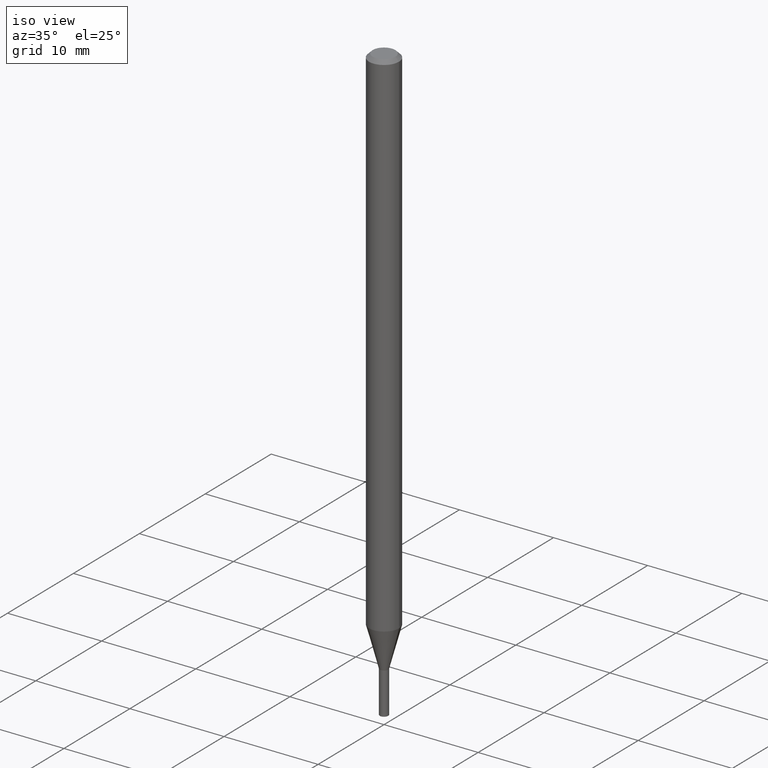
[diagram: clean part render]
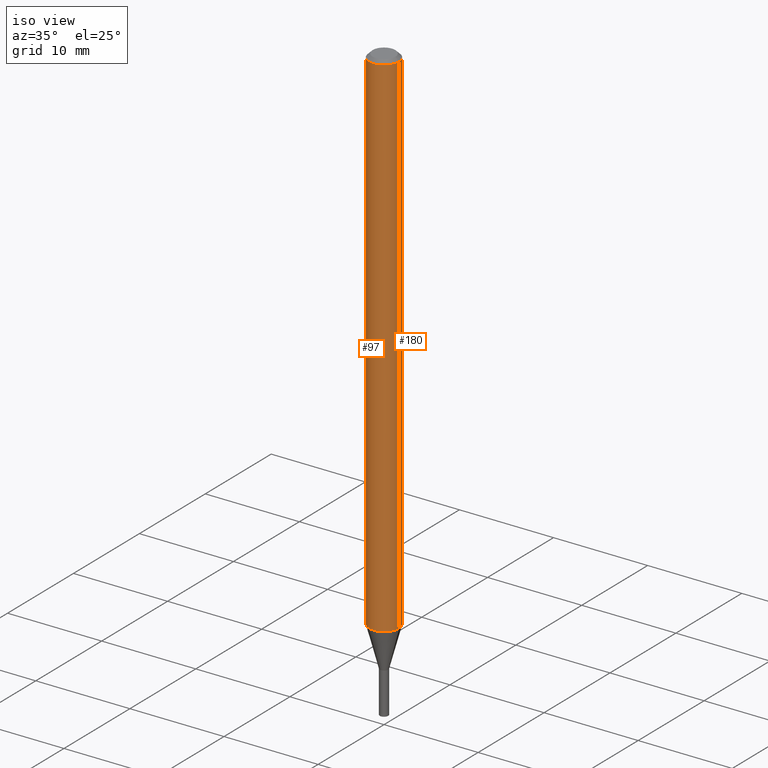
[diagram: same view with one multi-face feature highlighted, each face labeled with its STEP entity id]
A machine part, iso view. The highlighted faces form ONE feature: a constant-radius fillet chain: 2 tangent blend faces with common blend radius 1.5875 mm. The faces share edges in the B-rep.
Their STEP definitions:
[1] entity #97 (Cylinder):
#2 = CARTESIAN_POINT ( 'NONE',  ( 0.06250000000000000000, -4.364351673553916694E-16, 3.047610484872459871E-30 ) ) ;
#5 = DIRECTION ( 'NONE',  ( 1.000000000000000000, -6.982962677686262766E-15, 0.000000000000000000 ) ) ;
#9 = AXIS2_PLACEMENT_3D ( 'NONE', #406, #78, #179 ) ;
#29 = VERTEX_POINT ( 'NONE', #169 ) ;
#40 = AXIS2_PLACEMENT_3D ( 'NONE', #423, #247, #218 ) ;
#41 = CARTESIAN_POINT ( 'NONE',  ( 5.275017351895093327E-29, -7.531326754049456374E-15, -2.157057713659400022 ) ) ;
#42 = AXIS2_PLACEMENT_3D ( 'NONE', #41, #111, #5 ) ;
#78 = DIRECTION ( 'NONE',  ( -2.445468806185136597E-29, 3.491481338843145583E-15, 1.000000000000000000 ) ) ;
#97 = ADVANCED_FACE ( 'NONE', ( #348 ), #103, .T. ) ;
#103 = CYLINDRICAL_SURFACE ( 'NONE', #40, 0.06250000000000000000 ) ;
#111 = DIRECTION ( 'NONE',  ( -2.445468806185136597E-29, 3.491481338843145583E-15, 1.000000000000000000 ) ) ;
#135 = ORIENTED_EDGE ( 'NONE', *, *, #379, .T. ) ;
#138 = VERTEX_POINT ( 'NONE', #205 ) ;
#140 = CARTESIAN_POINT ( 'NONE',  ( -0.06250000000000000000, 4.440892098500626162E-16, -3.074334431409316114E-30 ) ) ;
#143 = ORIENTED_EDGE ( 'NONE', *, *, #313, .T. ) ;
#145 = DIRECTION ( 'NONE',  ( -2.445468806185136877E-29, 3.491481338843145188E-15, 1.000000000000000000 ) ) ;
#157 = VECTOR ( 'NONE', #145, 39.37007874015748143 ) ;
#169 = CARTESIAN_POINT ( 'NONE',  ( 0.06250000000000000000, -4.888073874380388472E-16, -0.01499999999999999944 ) ) ;
#179 = DIRECTION ( 'NONE',  ( 1.000000000000000000, -6.982962677686266711E-15, 0.000000000000000000 ) ) ;
#192 = CIRCLE ( 'NONE', #42, 0.06250000000000000000 ) ;
#205 = CARTESIAN_POINT ( 'NONE',  ( 0.06250000000000001388, -7.967761921404848044E-15, -2.157057713659400022 ) ) ;
#218 = DIRECTION ( 'NONE',  ( 1.000000000000000000, -6.982962677686266711E-15, 4.876176775795935793E-29 ) ) ;
#220 = ORIENTED_EDGE ( 'NONE', *, *, #415, .F. ) ;
#226 = LINE ( 'NONE', #2, #157 ) ;
#247 = DIRECTION ( 'NONE',  ( -2.445468806185136597E-29, 3.491481338843145583E-15, 1.000000000000000000 ) ) ;
#279 = VECTOR ( 'NONE', #436, 39.37007874015748143 ) ;
#302 = EDGE_CURVE ( 'NONE', #354, #29, #398, .T. ) ;
#313 = EDGE_CURVE ( 'NONE', #138, #29, #226, .T. ) ;
#320 = EDGE_LOOP ( 'NONE', ( #220, #135, #143, #431 ) ) ;
#348 = FACE_OUTER_BOUND ( 'NONE', #320, .T. ) ;
#354 = VERTEX_POINT ( 'NONE', #446 ) ;
#355 = LINE ( 'NONE', #140, #279 ) ;
#379 = EDGE_CURVE ( 'NONE', #396, #138, #192, .T. ) ;
#396 = VERTEX_POINT ( 'NONE', #397 ) ;
#397 = CARTESIAN_POINT ( 'NONE',  ( -0.06250000000000001388, -7.087237544199393758E-15, -2.157057713659400022 ) ) ;
#398 = CIRCLE ( 'NONE', #9, 0.06250000000000000000 ) ;
#406 = CARTESIAN_POINT ( 'NONE',  ( 3.668203209277705088E-31, -5.237222008264718399E-17, -0.01499999999999999944 ) ) ;
#415 = EDGE_CURVE ( 'NONE', #396, #354, #355, .T. ) ;
#423 = CARTESIAN_POINT ( 'NONE',  ( 0.000000000000000000, 0.000000000000000000, 0.000000000000000000 ) ) ;
#431 = ORIENTED_EDGE ( 'NONE', *, *, #302, .F. ) ;
#436 = DIRECTION ( 'NONE',  ( -2.445468806185136877E-29, 3.491481338843145188E-15, 1.000000000000000000 ) ) ;
#446 = CARTESIAN_POINT ( 'NONE',  ( -0.06250000000000000000, -3.347760277215989702E-15, -0.01499999999999999944 ) ) ;
[2] entity #180 (Cylinder):
#2 = CARTESIAN_POINT ( 'NONE',  ( 0.06250000000000000000, -4.364351673553916694E-16, 3.047610484872459871E-30 ) ) ;
#29 = VERTEX_POINT ( 'NONE', #169 ) ;
#44 = CARTESIAN_POINT ( 'NONE',  ( 0.000000000000000000, 0.000000000000000000, 0.000000000000000000 ) ) ;
#59 = CARTESIAN_POINT ( 'NONE',  ( 3.668203209277705088E-31, -5.237222008264718399E-17, -0.01499999999999999944 ) ) ;
#75 = EDGE_CURVE ( 'NONE', #138, #396, #77, .T. ) ;
#77 = CIRCLE ( 'NONE', #92, 0.06250000000000000000 ) ;
#84 = AXIS2_PLACEMENT_3D ( 'NONE', #44, #405, #112 ) ;
#92 = AXIS2_PLACEMENT_3D ( 'NONE', #417, #412, #377 ) ;
#112 = DIRECTION ( 'NONE',  ( 1.000000000000000000, -6.982962677686266711E-15, 4.876176775795935793E-29 ) ) ;
#138 = VERTEX_POINT ( 'NONE', #205 ) ;
#140 = CARTESIAN_POINT ( 'NONE',  ( -0.06250000000000000000, 4.440892098500626162E-16, -3.074334431409316114E-30 ) ) ;
#145 = DIRECTION ( 'NONE',  ( -2.445468806185136877E-29, 3.491481338843145188E-15, 1.000000000000000000 ) ) ;
#157 = VECTOR ( 'NONE', #145, 39.37007874015748143 ) ;
#158 = FACE_OUTER_BOUND ( 'NONE', #353, .T. ) ;
#162 = EDGE_CURVE ( 'NONE', #29, #354, #387, .T. ) ;
#169 = CARTESIAN_POINT ( 'NONE',  ( 0.06250000000000000000, -4.888073874380388472E-16, -0.01499999999999999944 ) ) ;
#180 = ADVANCED_FACE ( 'NONE', ( #158 ), #363, .T. ) ;
#190 = DIRECTION ( 'NONE',  ( 1.000000000000000000, -6.982962677686266711E-15, 0.000000000000000000 ) ) ;
#202 = DIRECTION ( 'NONE',  ( -2.445468806185136597E-29, 3.491481338843145583E-15, 1.000000000000000000 ) ) ;
#205 = CARTESIAN_POINT ( 'NONE',  ( 0.06250000000000001388, -7.967761921404848044E-15, -2.157057713659400022 ) ) ;
#215 = ORIENTED_EDGE ( 'NONE', *, *, #162, .F. ) ;
#219 = ORIENTED_EDGE ( 'NONE', *, *, #313, .F. ) ;
#226 = LINE ( 'NONE', #2, #157 ) ;
#279 = VECTOR ( 'NONE', #436, 39.37007874015748143 ) ;
#312 = ORIENTED_EDGE ( 'NONE', *, *, #75, .T. ) ;
#313 = EDGE_CURVE ( 'NONE', #138, #29, #226, .T. ) ;
#316 = AXIS2_PLACEMENT_3D ( 'NONE', #59, #202, #190 ) ;
#353 = EDGE_LOOP ( 'NONE', ( #312, #441, #215, #219 ) ) ;
#354 = VERTEX_POINT ( 'NONE', #446 ) ;
#355 = LINE ( 'NONE', #140, #279 ) ;
#363 = CYLINDRICAL_SURFACE ( 'NONE', #84, 0.06250000000000000000 ) ;
#377 = DIRECTION ( 'NONE',  ( 1.000000000000000000, -6.982962677686262766E-15, 0.000000000000000000 ) ) ;
#387 = CIRCLE ( 'NONE', #316, 0.06250000000000000000 ) ;
#396 = VERTEX_POINT ( 'NONE', #397 ) ;
#397 = CARTESIAN_POINT ( 'NONE',  ( -0.06250000000000001388, -7.087237544199393758E-15, -2.157057713659400022 ) ) ;
#405 = DIRECTION ( 'NONE',  ( -2.445468806185136597E-29, 3.491481338843145583E-15, 1.000000000000000000 ) ) ;
#412 = DIRECTION ( 'NONE',  ( -2.445468806185136597E-29, 3.491481338843145583E-15, 1.000000000000000000 ) ) ;
#415 = EDGE_CURVE ( 'NONE', #396, #354, #355, .T. ) ;
#417 = CARTESIAN_POINT ( 'NONE',  ( 5.275017351895093327E-29, -7.531326754049456374E-15, -2.157057713659400022 ) ) ;
#436 = DIRECTION ( 'NONE',  ( -2.445468806185136877E-29, 3.491481338843145188E-15, 1.000000000000000000 ) ) ;
#441 = ORIENTED_EDGE ( 'NONE', *, *, #415, .T. ) ;
#446 = CARTESIAN_POINT ( 'NONE',  ( -0.06250000000000000000, -3.347760277215989702E-15, -0.01499999999999999944 ) ) ;